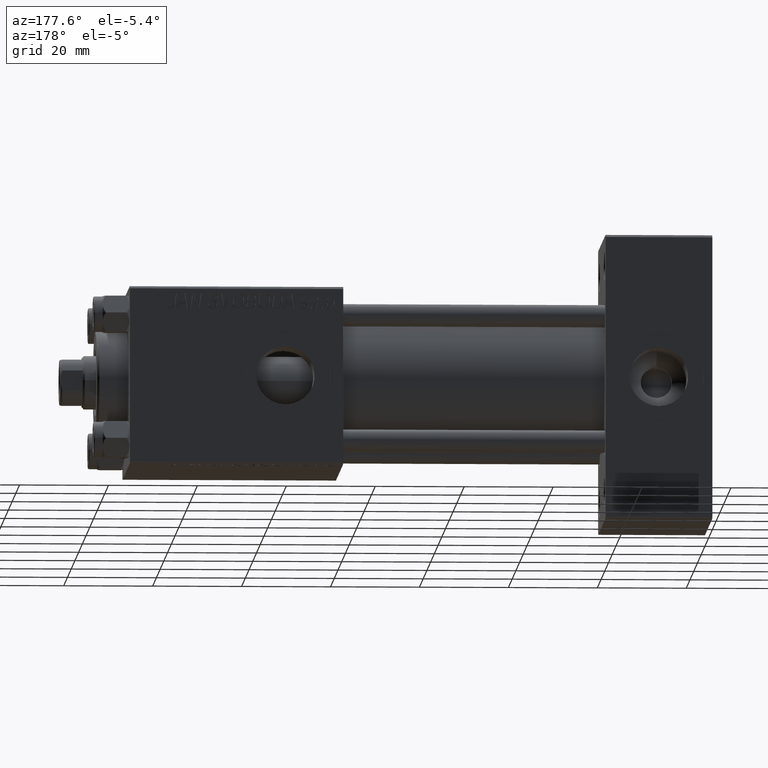
[diagram: clean part render]
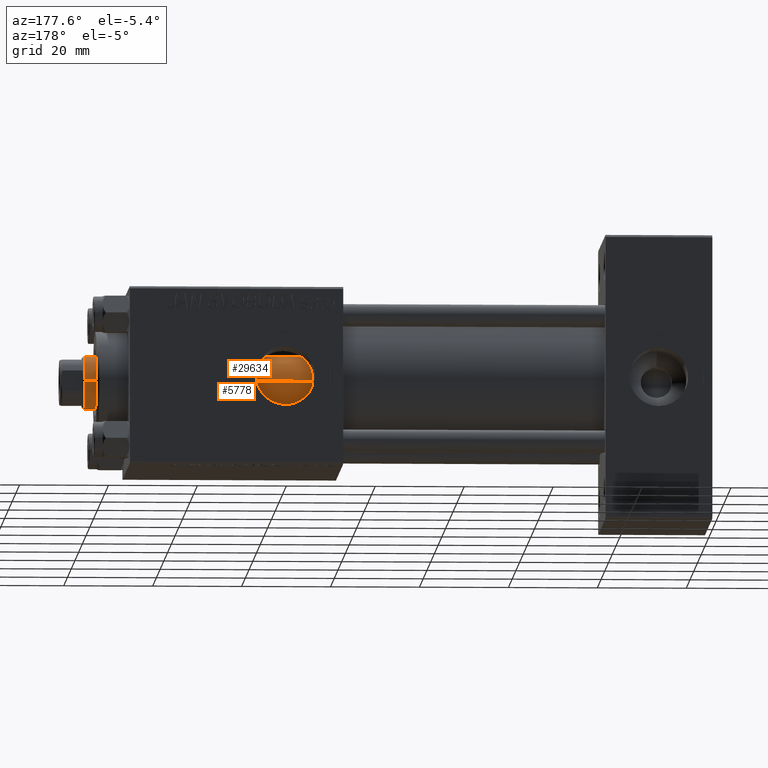
[diagram: same view with one multi-face feature highlighted, each face labeled with its STEP entity id]
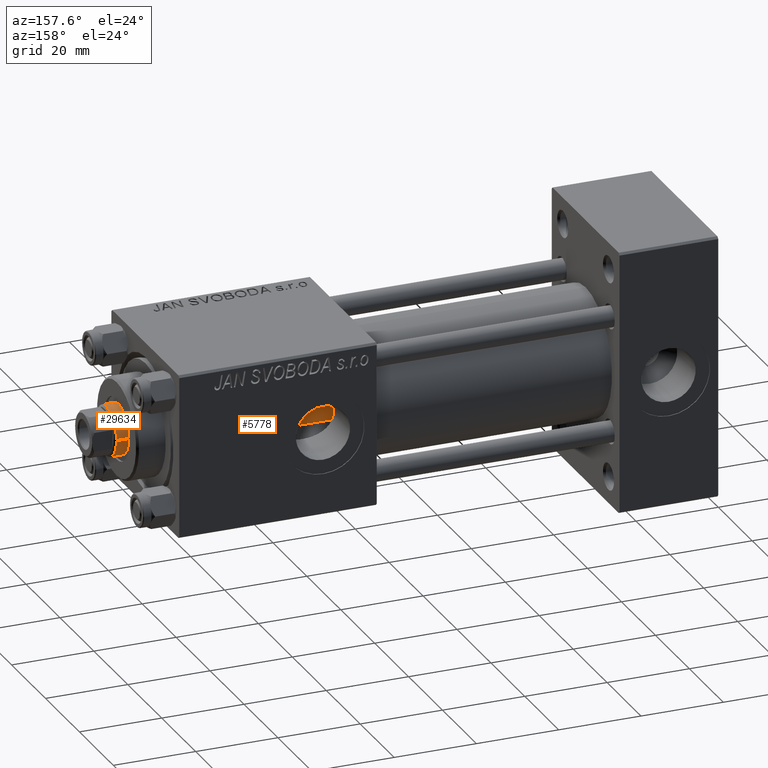
[diagram: same view with one multi-face feature highlighted, each face labeled with its STEP entity id]
A machine part, auxiliary view. The highlighted faces form ONE feature: a constant-radius fillet chain: 2 tangent blend faces with common blend radius 6 mm. The faces share edges in the B-rep.
A second angle (auxiliary view) of the same feature is appended — it is thin or edge-on in the first view.
Their STEP definitions:
[1] entity #5778 (Cylinder):
#910 = CARTESIAN_POINT ( 'NONE',  ( 6.000000000000000888, 7.347880794884119736E-16, 116.5000000000000853 ) ) ;
#3848 = ORIENTED_EDGE ( 'NONE', *, *, #45470, .F. ) ;
#4691 = AXIS2_PLACEMENT_3D ( 'NONE', #32807, #48692, #5772 ) ;
#5772 = DIRECTION ( 'NONE',  ( 1.000000000000000000, 0.000000000000000000, 0.000000000000000000 ) ) ;
#5778 = ADVANCED_FACE ( 'NONE', ( #30577 ), #18458, .T. ) ;
#9373 = ORIENTED_EDGE ( 'NONE', *, *, #15131, .T. ) ;
#11482 = CIRCLE ( 'NONE', #44527, 6.000000000000000888 ) ;
#14106 = VERTEX_POINT ( 'NONE', #910 ) ;
#14141 = DIRECTION ( 'NONE',  ( -0.000000000000000000, -0.000000000000000000, -1.000000000000000000 ) ) ;
#14796 = VECTOR ( 'NONE', #14141, 1000.000000000000000 ) ;
#15131 = EDGE_CURVE ( 'NONE', #42727, #14106, #11482, .T. ) ;
#15242 = CARTESIAN_POINT ( 'NONE',  ( 6.000000000000000888, 7.347880794884119736E-16, 117.0000000000000000 ) ) ;
#18458 = CYLINDRICAL_SURFACE ( 'NONE', #22601, 6.000000000000000888 ) ;
#20180 = CARTESIAN_POINT ( 'NONE',  ( -6.000000000000000888, 0.000000000000000000, 116.5000000000000853 ) ) ;
#21421 = EDGE_LOOP ( 'NONE', ( #9373, #24954, #21961, #3848 ) ) ;
#21961 = ORIENTED_EDGE ( 'NONE', *, *, #33567, .T. ) ;
#22601 = AXIS2_PLACEMENT_3D ( 'NONE', #41678, #38379, #41923 ) ;
#22766 = CARTESIAN_POINT ( 'NONE',  ( -6.000000000000000888, 0.000000000000000000, 27.00000000000000000 ) ) ;
#24954 = ORIENTED_EDGE ( 'NONE', *, *, #25727, .T. ) ;
#25727 = EDGE_CURVE ( 'NONE', #14106, #48380, #41515, .T. ) ;
#26161 = CARTESIAN_POINT ( 'NONE',  ( 0.000000000000000000, 0.000000000000000000, 116.5000000000000853 ) ) ;
#29694 = DIRECTION ( 'NONE',  ( 1.000000000000000000, 0.000000000000000000, 0.000000000000000000 ) ) ;
#30283 = VECTOR ( 'NONE', #45555, 1000.000000000000000 ) ;
#30577 = FACE_OUTER_BOUND ( 'NONE', #21421, .T. ) ;
#32807 = CARTESIAN_POINT ( 'NONE',  ( 0.000000000000000000, 0.000000000000000000, 27.00000000000000000 ) ) ;
#33344 = LINE ( 'NONE', #48732, #14796 ) ;
#33567 = EDGE_CURVE ( 'NONE', #48380, #48340, #47438, .T. ) ;
#37003 = DIRECTION ( 'NONE',  ( 0.000000000000000000, 0.000000000000000000, -1.000000000000000000 ) ) ;
#38179 = CARTESIAN_POINT ( 'NONE',  ( 6.000000000000000888, 7.347880794884119736E-16, 27.00000000000000000 ) ) ;
#38379 = DIRECTION ( 'NONE',  ( -0.000000000000000000, -0.000000000000000000, -1.000000000000000000 ) ) ;
#41515 = LINE ( 'NONE', #15242, #30283 ) ;
#41678 = CARTESIAN_POINT ( 'NONE',  ( 0.000000000000000000, 0.000000000000000000, 117.0000000000000000 ) ) ;
#41923 = DIRECTION ( 'NONE',  ( -1.000000000000000000, 0.000000000000000000, 0.000000000000000000 ) ) ;
#42727 = VERTEX_POINT ( 'NONE', #20180 ) ;
#44527 = AXIS2_PLACEMENT_3D ( 'NONE', #26161, #37003, #29694 ) ;
#45470 = EDGE_CURVE ( 'NONE', #42727, #48340, #33344, .T. ) ;
#45555 = DIRECTION ( 'NONE',  ( -0.000000000000000000, -0.000000000000000000, -1.000000000000000000 ) ) ;
#47438 = CIRCLE ( 'NONE', #4691, 6.000000000000000888 ) ;
#48340 = VERTEX_POINT ( 'NONE', #22766 ) ;
#48380 = VERTEX_POINT ( 'NONE', #38179 ) ;
#48692 = DIRECTION ( 'NONE',  ( 0.000000000000000000, 0.000000000000000000, 1.000000000000000000 ) ) ;
#48732 = CARTESIAN_POINT ( 'NONE',  ( -6.000000000000000888, 0.000000000000000000, 117.0000000000000000 ) ) ;
[2] entity #29634 (Cylinder):
#910 = CARTESIAN_POINT ( 'NONE',  ( 6.000000000000000888, 7.347880794884119736E-16, 116.5000000000000853 ) ) ;
#1629 = EDGE_CURVE ( 'NONE', #14106, #42727, #19187, .T. ) ;
#3665 = AXIS2_PLACEMENT_3D ( 'NONE', #47642, #24922, #13304 ) ;
#6289 = DIRECTION ( 'NONE',  ( -1.000000000000000000, 0.000000000000000000, 0.000000000000000000 ) ) ;
#6772 = CARTESIAN_POINT ( 'NONE',  ( 0.000000000000000000, 0.000000000000000000, 116.5000000000000853 ) ) ;
#8396 = ORIENTED_EDGE ( 'NONE', *, *, #1629, .T. ) ;
#8497 = DIRECTION ( 'NONE',  ( 0.000000000000000000, 0.000000000000000000, -1.000000000000000000 ) ) ;
#13304 = DIRECTION ( 'NONE',  ( 1.000000000000000000, 0.000000000000000000, 0.000000000000000000 ) ) ;
#14106 = VERTEX_POINT ( 'NONE', #910 ) ;
#14141 = DIRECTION ( 'NONE',  ( -0.000000000000000000, -0.000000000000000000, -1.000000000000000000 ) ) ;
#14796 = VECTOR ( 'NONE', #14141, 1000.000000000000000 ) ;
#15242 = CARTESIAN_POINT ( 'NONE',  ( 6.000000000000000888, 7.347880794884119736E-16, 117.0000000000000000 ) ) ;
#19187 = CIRCLE ( 'NONE', #47384, 6.000000000000000888 ) ;
#20180 = CARTESIAN_POINT ( 'NONE',  ( -6.000000000000000888, 0.000000000000000000, 116.5000000000000853 ) ) ;
#20949 = FACE_OUTER_BOUND ( 'NONE', #30849, .T. ) ;
#22766 = CARTESIAN_POINT ( 'NONE',  ( -6.000000000000000888, 0.000000000000000000, 27.00000000000000000 ) ) ;
#23315 = EDGE_CURVE ( 'NONE', #48340, #48380, #43152, .T. ) ;
#24922 = DIRECTION ( 'NONE',  ( 0.000000000000000000, 0.000000000000000000, 1.000000000000000000 ) ) ;
#25246 = CARTESIAN_POINT ( 'NONE',  ( 0.000000000000000000, 0.000000000000000000, 117.0000000000000000 ) ) ;
#25727 = EDGE_CURVE ( 'NONE', #14106, #48380, #41515, .T. ) ;
#28827 = AXIS2_PLACEMENT_3D ( 'NONE', #25246, #45181, #6289 ) ;
#29540 = CYLINDRICAL_SURFACE ( 'NONE', #28827, 6.000000000000000888 ) ;
#29634 = ADVANCED_FACE ( 'NONE', ( #20949 ), #29540, .T. ) ;
#30283 = VECTOR ( 'NONE', #45555, 1000.000000000000000 ) ;
#30849 = EDGE_LOOP ( 'NONE', ( #49912, #8396, #35649, #44921 ) ) ;
#33344 = LINE ( 'NONE', #48732, #14796 ) ;
#34791 = DIRECTION ( 'NONE',  ( 1.000000000000000000, 0.000000000000000000, 0.000000000000000000 ) ) ;
#35649 = ORIENTED_EDGE ( 'NONE', *, *, #45470, .T. ) ;
#38179 = CARTESIAN_POINT ( 'NONE',  ( 6.000000000000000888, 7.347880794884119736E-16, 27.00000000000000000 ) ) ;
#41515 = LINE ( 'NONE', #15242, #30283 ) ;
#42727 = VERTEX_POINT ( 'NONE', #20180 ) ;
#43152 = CIRCLE ( 'NONE', #3665, 6.000000000000000888 ) ;
#44921 = ORIENTED_EDGE ( 'NONE', *, *, #23315, .T. ) ;
#45181 = DIRECTION ( 'NONE',  ( -0.000000000000000000, -0.000000000000000000, -1.000000000000000000 ) ) ;
#45470 = EDGE_CURVE ( 'NONE', #42727, #48340, #33344, .T. ) ;
#45555 = DIRECTION ( 'NONE',  ( -0.000000000000000000, -0.000000000000000000, -1.000000000000000000 ) ) ;
#47384 = AXIS2_PLACEMENT_3D ( 'NONE', #6772, #8497, #34791 ) ;
#47642 = CARTESIAN_POINT ( 'NONE',  ( 0.000000000000000000, 0.000000000000000000, 27.00000000000000000 ) ) ;
#48340 = VERTEX_POINT ( 'NONE', #22766 ) ;
#48380 = VERTEX_POINT ( 'NONE', #38179 ) ;
#48732 = CARTESIAN_POINT ( 'NONE',  ( -6.000000000000000888, 0.000000000000000000, 117.0000000000000000 ) ) ;
#49912 = ORIENTED_EDGE ( 'NONE', *, *, #25727, .F. ) ;